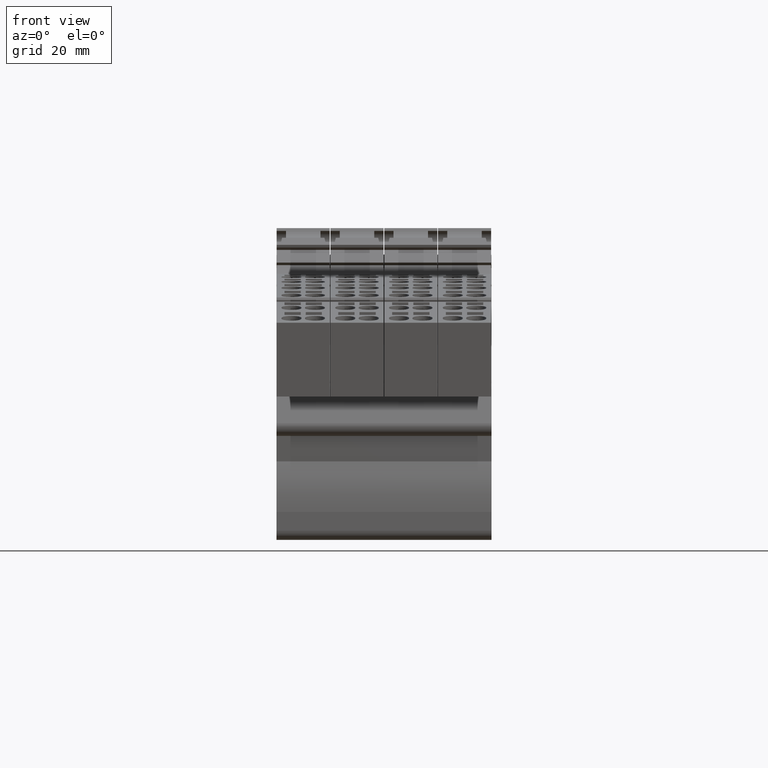
[diagram: clean part render]
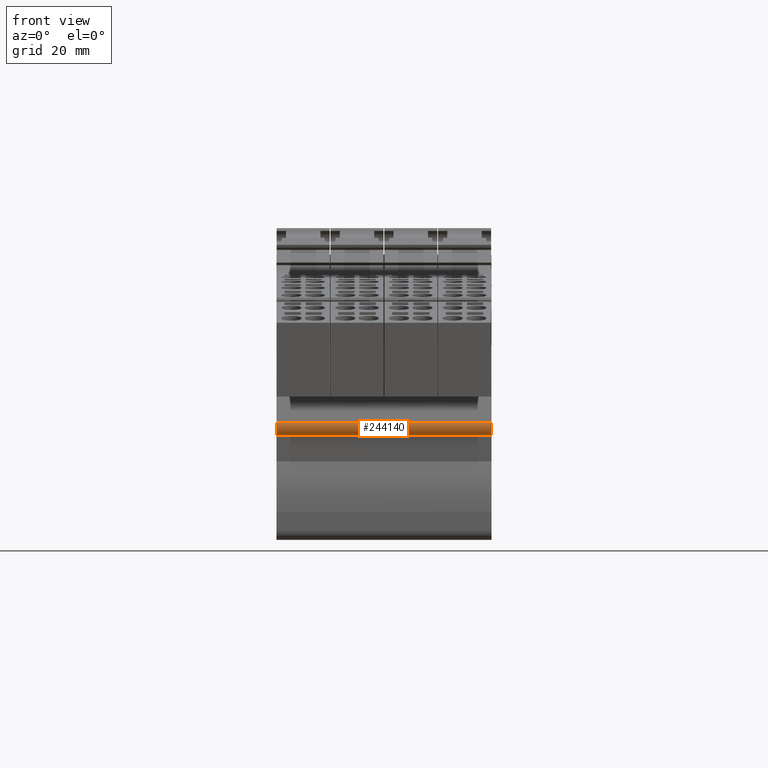
[diagram: same view with one face highlighted and labeled with its STEP entity id]
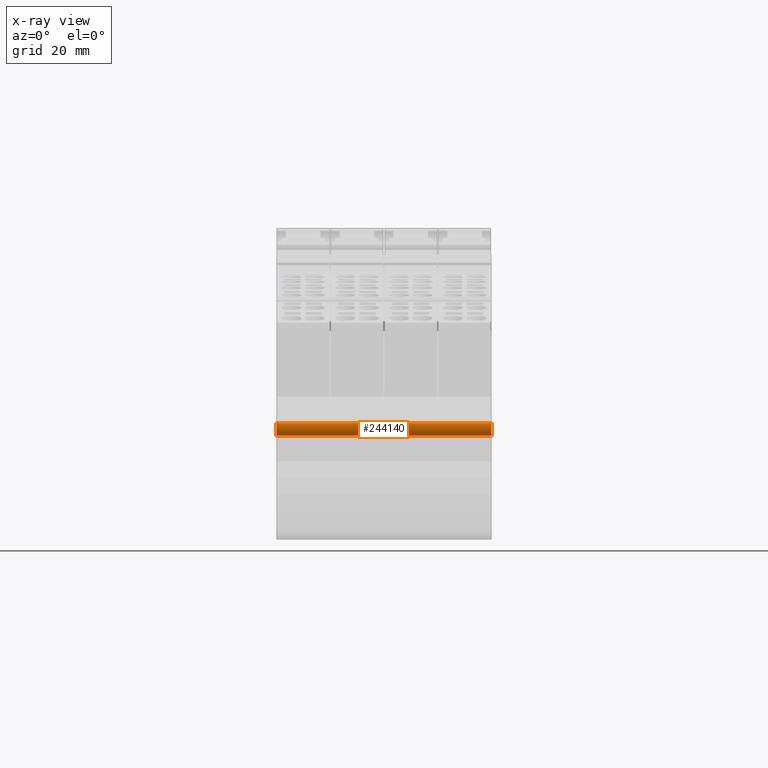
[diagram: x-ray of the same camera — body ghosted, the highlighted face saturated]
A machine part, front view. The second image highlights one B-rep face of the part: STEP entity #244140.
The next image is the same camera in x-ray: the body ghosted, the highlighted face saturated — about 0% of this face is hidden behind the body in this view.
In plain terms, the highlighted cylindrical surface (edge-blend (fillet) strip) has radius 2 mm, axis along (1, 0, 0).
Its self-contained STEP definition (entity closure, byte-faithful):
#221570=CARTESIAN_POINT('',(178.617847465007,-39.4542780967927,36.45));
#221580=VERTEX_POINT('',#221570);
#221610=CARTESIAN_POINT('',(178.617847465008,-37.4542780967927,36.45));
#221620=DIRECTION('',(0.,0.,1.));
#221630=DIRECTION('',(1.,-1.05193631583234E-14,0.));
#221640=AXIS2_PLACEMENT_3D('',#221610,#221620,#221630);
#221650=CIRCLE('',#221640,2.);
#221660=CARTESIAN_POINT('',(176.81959323638,-36.578902903391,36.45));
#221670=VERTEX_POINT('',#221660);
#221680=EDGE_CURVE('',#221670,#221580,#221650,.T.);
#225290=CARTESIAN_POINT('',(176.81959323638,-36.578902903391,-12.15));
#225300=VERTEX_POINT('',#225290);
#225330=CARTESIAN_POINT('',(178.617847465008,-37.4542780967927,-12.15));
#225340=DIRECTION('',(0.,0.,1.));
#225350=DIRECTION('',(1.,-1.05193631583234E-14,0.));
#225360=AXIS2_PLACEMENT_3D('',#225330,#225340,#225350);
#225370=CIRCLE('',#225360,2.);
#225380=CARTESIAN_POINT('',(178.617847465007,-39.4542780967927,-12.15));
#225390=VERTEX_POINT('',#225380);
#225400=EDGE_CURVE('',#225300,#225390,#225370,.T.);
#243820=CARTESIAN_POINT('',(176.81959323638,-36.578902903391,
6.14999999999999));
#243830=DIRECTION('',(0.,0.,1.));
#243840=VECTOR('',#243830,1.);
#243850=LINE('',#243820,#243840);
#243860=EDGE_CURVE('',#225300,#221670,#243850,.T.);
#243980=CARTESIAN_POINT('',(178.617847465008,-37.4542780967927,
6.14999999999999));
#243990=DIRECTION('',(0.,0.,1.));
#244000=DIRECTION('',(1.,-1.05193631583234E-14,0.));
#244010=AXIS2_PLACEMENT_3D('',#243980,#243990,#244000);
#244020=CYLINDRICAL_SURFACE('',#244010,2.);
#244030=ORIENTED_EDGE('',*,*,#225400,.T.);
#244040=ORIENTED_EDGE('',*,*,#243860,.F.);
#244050=ORIENTED_EDGE('',*,*,#221680,.F.);
#244060=CARTESIAN_POINT('',(178.617847465007,-39.4542780967927,
6.14999999999999));
#244070=DIRECTION('',(0.,0.,1.));
#244080=VECTOR('',#244070,1.);
#244090=LINE('',#244060,#244080);
#244100=EDGE_CURVE('',#225390,#221580,#244090,.T.);
#244110=ORIENTED_EDGE('',*,*,#244100,.T.);
#244120=EDGE_LOOP('',(#244110,#244050,#244040,#244030));
#244130=FACE_OUTER_BOUND('',#244120,.T.);
#244140=ADVANCED_FACE('',(#244130),#244020,.T.);